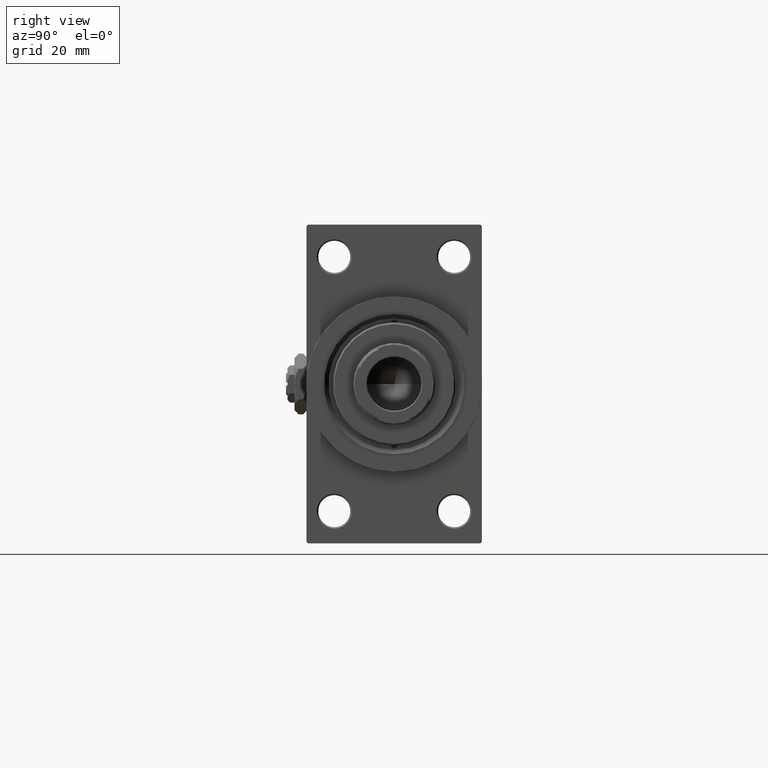
[diagram: clean part render]
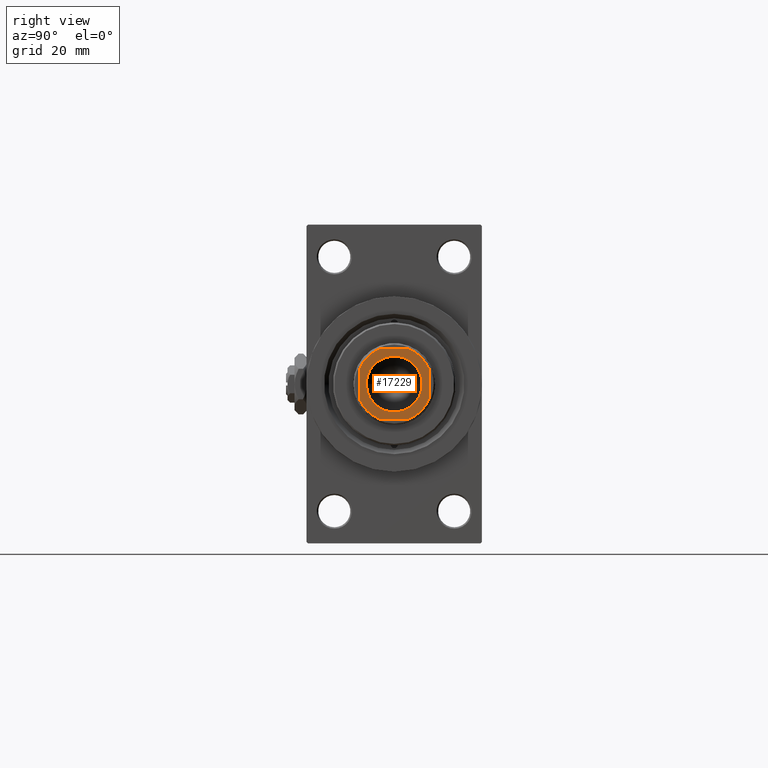
[diagram: same view with one face highlighted and labeled with its STEP entity id]
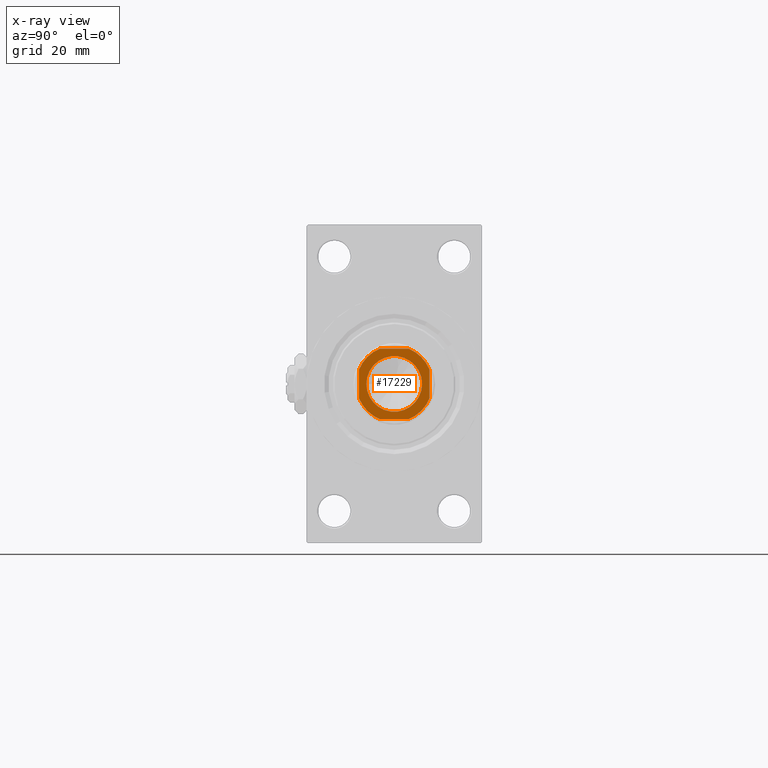
[diagram: x-ray of the same camera — body ghosted, the highlighted face saturated]
A machine part, right view. The second image highlights one B-rep face of the part: STEP entity #17229.
The next image is the same camera in x-ray: the body ghosted, the highlighted face saturated — about 0% of this face is hidden behind the body in this view.
In plain terms, the highlighted planar face has unit normal (1, 0, 0).
Its self-contained STEP definition (entity closure, byte-faithful):
#104 = VERTEX_POINT ( 'NONE', #2045 ) ;
#681 = DIRECTION ( 'NONE',  ( -0.000000000000000000, 0.000000000000000000, 1.000000000000000000 ) ) ;
#744 = AXIS2_PLACEMENT_3D ( 'NONE', #3793, #11080, #26380 ) ;
#1778 = CARTESIAN_POINT ( 'NONE',  ( 0.000000000000000000, 0.000000000000000000, 166.0000000000000000 ) ) ;
#2045 = CARTESIAN_POINT ( 'NONE',  ( -5.000000000000039080, 11.99999999999999645, 166.0000000000000000 ) ) ;
#2164 = EDGE_CURVE ( 'NONE', #26150, #46328, #16365, .T. ) ;
#2781 = CARTESIAN_POINT ( 'NONE',  ( 4.999999999999907629, 11.99999999999999645, 166.0000000000000000 ) ) ;
#2951 = VERTEX_POINT ( 'NONE', #4610 ) ;
#3793 = CARTESIAN_POINT ( 'NONE',  ( 0.000000000000000000, 0.000000000000000000, 166.0000000000000000 ) ) ;
#4176 = ORIENTED_EDGE ( 'NONE', *, *, #44596, .T. ) ;
#4610 = CARTESIAN_POINT ( 'NONE',  ( 4.999999999999954703, -12.00000000000000355, 166.0000000000000000 ) ) ;
#4831 = CIRCLE ( 'NONE', #32097, 12.99999999999996092 ) ;
#4863 = ORIENTED_EDGE ( 'NONE', *, *, #32976, .T. ) ;
#5264 = EDGE_CURVE ( 'NONE', #104, #7492, #36514, .T. ) ;
#5594 = DIRECTION ( 'NONE',  ( -1.000000000000000000, -0.000000000000000000, -0.000000000000000000 ) ) ;
#5694 = AXIS2_PLACEMENT_3D ( 'NONE', #15459, #30748, #14717 ) ;
#6637 = FACE_OUTER_BOUND ( 'NONE', #32801, .T. ) ;
#7136 = CARTESIAN_POINT ( 'NONE',  ( 0.000000000000000000, 0.000000000000000000, 166.0000000000000000 ) ) ;
#7492 = VERTEX_POINT ( 'NONE', #19980 ) ;
#8106 = DIRECTION ( 'NONE',  ( 1.000000000000000000, 0.000000000000000000, 0.000000000000000000 ) ) ;
#8842 = VERTEX_POINT ( 'NONE', #10734 ) ;
#9027 = VERTEX_POINT ( 'NONE', #41856 ) ;
#9367 = LINE ( 'NONE', #20392, #20009 ) ;
#9758 = EDGE_LOOP ( 'NONE', ( #32587, #35439 ) ) ;
#10534 = DIRECTION ( 'NONE',  ( 1.000000000000000000, 0.000000000000000000, 0.000000000000000000 ) ) ;
#10604 = DIRECTION ( 'NONE',  ( -2.891205793294678326E-16, 1.000000000000000000, -0.000000000000000000 ) ) ;
#10734 = CARTESIAN_POINT ( 'NONE',  ( -9.549999999999988276, 1.169537693185720980E-15, 166.0000000000000000 ) ) ;
#11080 = DIRECTION ( 'NONE',  ( 0.000000000000000000, -0.000000000000000000, -1.000000000000000000 ) ) ;
#11820 = FACE_BOUND ( 'NONE', #9758, .T. ) ;
#12268 = DIRECTION ( 'NONE',  ( 1.000000000000000000, 0.000000000000000000, 0.000000000000000000 ) ) ;
#13733 = CARTESIAN_POINT ( 'NONE',  ( -12.00000000000000000, -4.999999999999885425, 166.0000000000000000 ) ) ;
#14175 = ORIENTED_EDGE ( 'NONE', *, *, #46968, .T. ) ;
#14717 = DIRECTION ( 'NONE',  ( 1.000000000000000000, 0.000000000000000000, 0.000000000000000000 ) ) ;
#15459 = CARTESIAN_POINT ( 'NONE',  ( 0.000000000000000000, 0.000000000000000000, 166.0000000000000000 ) ) ;
#16365 = CIRCLE ( 'NONE', #19581, 12.99999999999995559 ) ;
#16373 = DIRECTION ( 'NONE',  ( -0.000000000000000000, 0.000000000000000000, 1.000000000000000000 ) ) ;
#16456 = LINE ( 'NONE', #42795, #40658 ) ;
#17229 = ADVANCED_FACE ( 'NONE', ( #11820, #6637 ), #45266, .T. ) ;
#19581 = AXIS2_PLACEMENT_3D ( 'NONE', #23793, #23293, #12268 ) ;
#19693 = ORIENTED_EDGE ( 'NONE', *, *, #5264, .T. ) ;
#19889 = CARTESIAN_POINT ( 'NONE',  ( 0.000000000000000000, 0.000000000000000000, 166.0000000000000000 ) ) ;
#19980 = CARTESIAN_POINT ( 'NONE',  ( -12.00000000000000000, 5.000000000000031086, 166.0000000000000000 ) ) ;
#20009 = VECTOR ( 'NONE', #5594, 1000.000000000000000 ) ;
#20034 = EDGE_CURVE ( 'NONE', #33023, #104, #9367, .T. ) ;
#20392 = CARTESIAN_POINT ( 'NONE',  ( -12.00000000000000000, 11.99999999999999645, 166.0000000000000000 ) ) ;
#21736 = AXIS2_PLACEMENT_3D ( 'NONE', #1778, #681, #10534 ) ;
#22427 = DIRECTION ( 'NONE',  ( 1.000000000000000000, 0.000000000000000000, 0.000000000000000000 ) ) ;
#22718 = ORIENTED_EDGE ( 'NONE', *, *, #34072, .T. ) ;
#23134 = CIRCLE ( 'NONE', #744, 9.549999999999988276 ) ;
#23293 = DIRECTION ( 'NONE',  ( -0.000000000000000000, 0.000000000000000000, 1.000000000000000000 ) ) ;
#23618 = DIRECTION ( 'NONE',  ( 7.228014483236695816E-17, -1.000000000000000000, 0.000000000000000000 ) ) ;
#23752 = VECTOR ( 'NONE', #23618, 1000.000000000000000 ) ;
#23793 = CARTESIAN_POINT ( 'NONE',  ( 0.000000000000000000, 0.000000000000000000, 166.0000000000000000 ) ) ;
#25310 = CARTESIAN_POINT ( 'NONE',  ( 0.000000000000000000, 0.000000000000000000, 166.0000000000000000 ) ) ;
#25784 = VERTEX_POINT ( 'NONE', #30689 ) ;
#26150 = VERTEX_POINT ( 'NONE', #13733 ) ;
#26380 = DIRECTION ( 'NONE',  ( 1.000000000000000000, 0.000000000000000000, 0.000000000000000000 ) ) ;
#27592 = EDGE_CURVE ( 'NONE', #39416, #9027, #45226, .T. ) ;
#29915 = CARTESIAN_POINT ( 'NONE',  ( 11.99999999999999645, 11.99999999999999645, 166.0000000000000000 ) ) ;
#30689 = CARTESIAN_POINT ( 'NONE',  ( 9.549999999999988276, 0.000000000000000000, 166.0000000000000000 ) ) ;
#30748 = DIRECTION ( 'NONE',  ( 0.000000000000000000, -0.000000000000000000, -1.000000000000000000 ) ) ;
#32097 = AXIS2_PLACEMENT_3D ( 'NONE', #25310, #32592, #43895 ) ;
#32587 = ORIENTED_EDGE ( 'NONE', *, *, #37737, .T. ) ;
#32592 = DIRECTION ( 'NONE',  ( -0.000000000000000000, 0.000000000000000000, 1.000000000000000000 ) ) ;
#32801 = EDGE_LOOP ( 'NONE', ( #47017, #4176, #43025, #19693, #4863, #40306, #22718, #14175 ) ) ;
#32976 = EDGE_CURVE ( 'NONE', #7492, #26150, #46467, .T. ) ;
#33023 = VERTEX_POINT ( 'NONE', #2781 ) ;
#33221 = DIRECTION ( 'NONE',  ( -0.000000000000000000, 0.000000000000000000, 1.000000000000000000 ) ) ;
#33317 = VECTOR ( 'NONE', #10604, 1000.000000000000000 ) ;
#34072 = EDGE_CURVE ( 'NONE', #46328, #2951, #16456, .T. ) ;
#35439 = ORIENTED_EDGE ( 'NONE', *, *, #45962, .T. ) ;
#36514 = CIRCLE ( 'NONE', #42934, 13.00000000000001066 ) ;
#36919 = CIRCLE ( 'NONE', #5694, 9.549999999999988276 ) ;
#37737 = EDGE_CURVE ( 'NONE', #25784, #8842, #23134, .T. ) ;
#39416 = VERTEX_POINT ( 'NONE', #44149 ) ;
#39682 = CARTESIAN_POINT ( 'NONE',  ( -12.00000000000000000, 11.99999999999999645, 166.0000000000000000 ) ) ;
#40306 = ORIENTED_EDGE ( 'NONE', *, *, #2164, .T. ) ;
#40658 = VECTOR ( 'NONE', #42557, 1000.000000000000000 ) ;
#41652 = AXIS2_PLACEMENT_3D ( 'NONE', #7136, #33221, #22427 ) ;
#41856 = CARTESIAN_POINT ( 'NONE',  ( 11.99999999999999822, 4.999999999999901412, 166.0000000000000000 ) ) ;
#42557 = DIRECTION ( 'NONE',  ( 1.000000000000000000, 0.000000000000000000, 0.000000000000000000 ) ) ;
#42795 = CARTESIAN_POINT ( 'NONE',  ( -11.99999999999999822, -12.00000000000000355, 166.0000000000000000 ) ) ;
#42934 = AXIS2_PLACEMENT_3D ( 'NONE', #19889, #16373, #8106 ) ;
#43025 = ORIENTED_EDGE ( 'NONE', *, *, #20034, .T. ) ;
#43385 = CIRCLE ( 'NONE', #21736, 12.99999999999998579 ) ;
#43895 = DIRECTION ( 'NONE',  ( 1.000000000000000000, 0.000000000000000000, 0.000000000000000000 ) ) ;
#44149 = CARTESIAN_POINT ( 'NONE',  ( 12.00000000000000178, -4.999999999999959144, 166.0000000000000000 ) ) ;
#44596 = EDGE_CURVE ( 'NONE', #9027, #33023, #4831, .T. ) ;
#45226 = LINE ( 'NONE', #29915, #33317 ) ;
#45266 = PLANE ( 'NONE',  #41652 ) ;
#45962 = EDGE_CURVE ( 'NONE', #8842, #25784, #36919, .T. ) ;
#46328 = VERTEX_POINT ( 'NONE', #49267 ) ;
#46467 = LINE ( 'NONE', #39682, #23752 ) ;
#46968 = EDGE_CURVE ( 'NONE', #2951, #39416, #43385, .T. ) ;
#47017 = ORIENTED_EDGE ( 'NONE', *, *, #27592, .T. ) ;
#49267 = CARTESIAN_POINT ( 'NONE',  ( -4.999999999999875655, -12.00000000000000355, 166.0000000000000000 ) ) ;